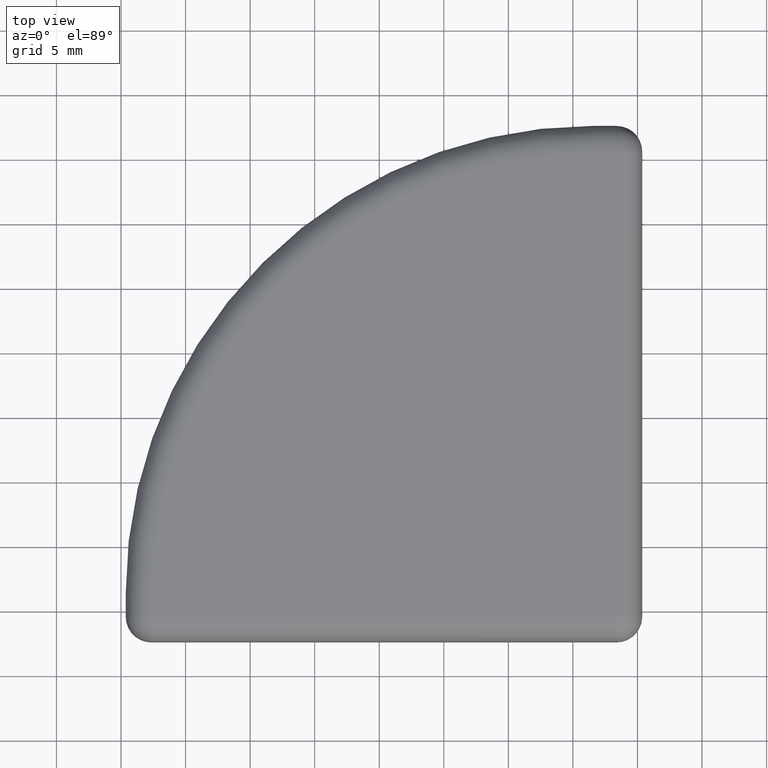
[diagram: clean part render]
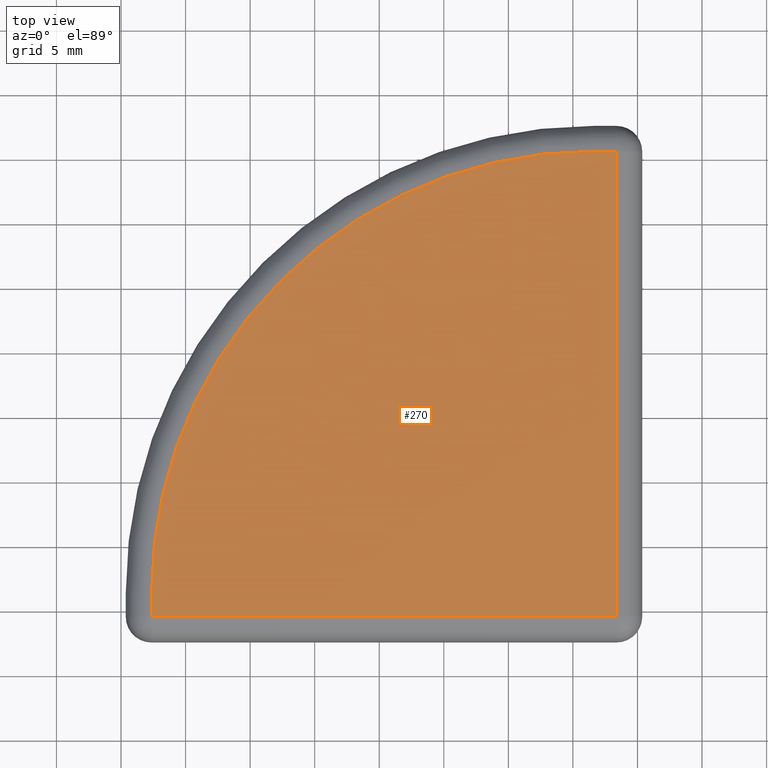
[diagram: same view with one face highlighted and labeled with its STEP entity id]
A machine part, top view. The second image highlights one B-rep face of the part: STEP entity #270.
In plain terms, the highlighted planar face has unit normal (0, 0, 1).
Its self-contained STEP definition (entity closure, byte-faithful):
#17=PLANE('',#326);
#37=FACE_OUTER_BOUND('',#55,.T.);
#55=EDGE_LOOP('',(#221,#222,#223,#224,#225));
#62=LINE('',#435,#82);
#64=LINE('',#443,#84);
#65=LINE('',#454,#85);
#68=LINE('',#464,#88);
#82=VECTOR('',#343,10.);
#84=VECTOR('',#351,10.);
#85=VECTOR('',#364,10.);
#88=VECTOR('',#377,10.);
#106=CIRCLE('',#307,34.21);
#118=VERTEX_POINT('',#428);
#121=VERTEX_POINT('',#433);
#124=VERTEX_POINT('',#441);
#126=VERTEX_POINT('',#446);
#128=VERTEX_POINT('',#452);
#142=EDGE_CURVE('',#121,#118,#62,.T.);
#146=EDGE_CURVE('',#124,#121,#64,.T.);
#148=EDGE_CURVE('',#126,#124,#106,.T.);
#151=EDGE_CURVE('',#128,#126,#65,.T.);
#157=EDGE_CURVE('',#118,#128,#68,.T.);
#221=ORIENTED_EDGE('',*,*,#142,.F.);
#222=ORIENTED_EDGE('',*,*,#146,.F.);
#223=ORIENTED_EDGE('',*,*,#148,.F.);
#224=ORIENTED_EDGE('',*,*,#151,.F.);
#225=ORIENTED_EDGE('',*,*,#157,.F.);
#270=ADVANCED_FACE('',(#37),#17,.T.);
#307=AXIS2_PLACEMENT_3D('',#448,#356,#357);
#326=AXIS2_PLACEMENT_3D('',#487,#405,#406);
#343=DIRECTION('',(6.41462192005654E-15,-1.,0.));
#351=DIRECTION('',(1.,-1.29009155934115E-13,0.));
#356=DIRECTION('center_axis',(0.,0.,-1.));
#357=DIRECTION('ref_axis',(-0.707106781186547,0.707106781186548,0.));
#364=DIRECTION('',(1.27148446954296E-13,1.,0.));
#377=DIRECTION('',(-1.,0.,0.));
#405=DIRECTION('center_axis',(0.,0.,1.));
#406=DIRECTION('ref_axis',(1.,0.,0.));
#428=CARTESIAN_POINT('',(43.3692019380737,4.63083275760073,3.));
#433=CARTESIAN_POINT('',(43.3692019380735,40.6308327576003,3.));
#435=CARTESIAN_POINT('',(43.3692019380737,11.7620032159202,3.));
#441=CARTESIAN_POINT('',(41.5792019380733,40.6308327576005,3.));
#443=CARTESIAN_POINT('',(36.2380314797552,40.6308327576012,3.));
#446=CARTESIAN_POINT('',(7.36920193807354,6.42083275760047,3.));
#448=CARTESIAN_POINT('Origin',(41.5792019380735,6.42083275760046,3.));
#452=CARTESIAN_POINT('',(7.36920193807327,4.63083275760047,3.));
#454=CARTESIAN_POINT('',(7.36920193807429,12.6570032159212,3.));
#464=CARTESIAN_POINT('',(18.2380314797539,4.63083275760073,3.));
#487=CARTESIAN_POINT('Origin',(29.1068610214345,18.8931736742395,3.));